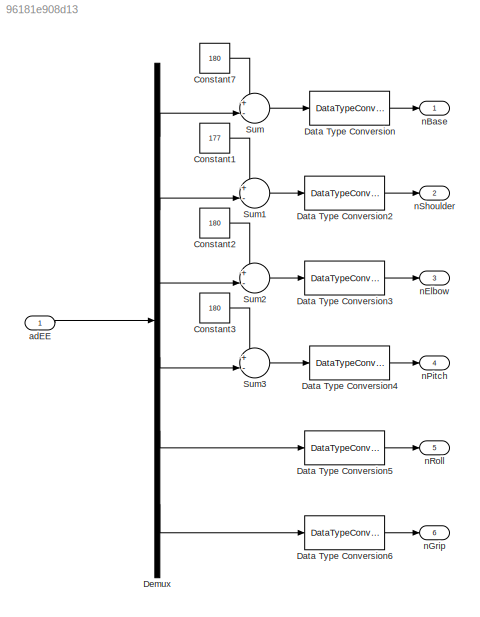
MODEL slx_96181e908d13
KIND model
CONFIG AbsTol = auto
CONFIG EnableMultiTasking = on
CONFIG FixedStep = auto
CONFIG MaxStep = auto
CONFIG MinStep = auto
CONFIG RelTol = 1e-3
CONFIG SampleTimeConstraint = Unconstrained
CONFIG SolverName = FixedStepAuto
CONFIG StartTime = 0.0
CONFIG StopTime = inf
BLOCK [Constant] Constant1
  Value = 177
BLOCK [Constant] Constant2
  Value = 180
BLOCK [Constant] Constant3
  Value = 180
BLOCK [Constant] Constant7
  Value = 180
BLOCK [DataTypeConversion] Data Type Conversion
  OutDataTypeStr = int32
  RndMeth = Round
  SaturateOnIntegerOverflow = off
BLOCK [DataTypeConversion] Data Type Conversion2
  OutDataTypeStr = int32
  RndMeth = Round
  SaturateOnIntegerOverflow = off
BLOCK [DataTypeConversion] Data Type Conversion3
  OutDataTypeStr = int32
  RndMeth = Round
  SaturateOnIntegerOverflow = off
BLOCK [DataTypeConversion] Data Type Conversion4
  OutDataTypeStr = int32
  RndMeth = Round
  SaturateOnIntegerOverflow = off
BLOCK [DataTypeConversion] Data Type Conversion5
  OutDataTypeStr = int32
  RndMeth = Round
  SaturateOnIntegerOverflow = off
BLOCK [DataTypeConversion] Data Type Conversion6
  OutDataTypeStr = int32
  RndMeth = Round
  SaturateOnIntegerOverflow = off
BLOCK [Demux] Demux
  Outputs = 6
  Ports = [1, 6]
BLOCK [Sum] Sum
  Inputs = +-|
  Ports = [2, 1]
BLOCK [Sum] Sum1
  Inputs = +-|
  Ports = [2, 1]
BLOCK [Sum] Sum2
  Inputs = +-|
  Ports = [2, 1]
BLOCK [Sum] Sum3
  Inputs = +-|
  Ports = [2, 1]
BLOCK [Inport] adEE
BLOCK [Outport] nBase
BLOCK [Outport] nElbow
  Port = 3
BLOCK [Outport] nGrip
  Port = 6
BLOCK [Outport] nPitch
  Port = 4
BLOCK [Outport] nRoll
  Port = 5
BLOCK [Outport] nShoulder
  Port = 2
LINE Constant1:1 -> Sum1:1
LINE Constant2:1 -> Sum2:1
LINE Constant3:1 -> Sum3:1
LINE Constant7:1 -> Sum:1
LINE Data Type Conversion2:1 -> nShoulder:1
LINE Data Type Conversion3:1 -> nElbow:1
LINE Data Type Conversion4:1 -> nPitch:1
LINE Data Type Conversion5:1 -> nRoll:1
LINE Data Type Conversion6:1 -> nGrip:1
LINE Data Type Conversion:1 -> nBase:1
LINE Demux:1 -> Sum:2
LINE Demux:2 -> Sum1:2
LINE Demux:3 -> Sum2:2
LINE Demux:4 -> Sum3:2
LINE Demux:5 -> Data Type Conversion5:1
LINE Demux:6 -> Data Type Conversion6:1
LINE Sum1:1 -> Data Type Conversion2:1
LINE Sum2:1 -> Data Type Conversion3:1
LINE Sum3:1 -> Data Type Conversion4:1
LINE Sum:1 -> Data Type Conversion:1
LINE adEE:1 -> Demux:1
